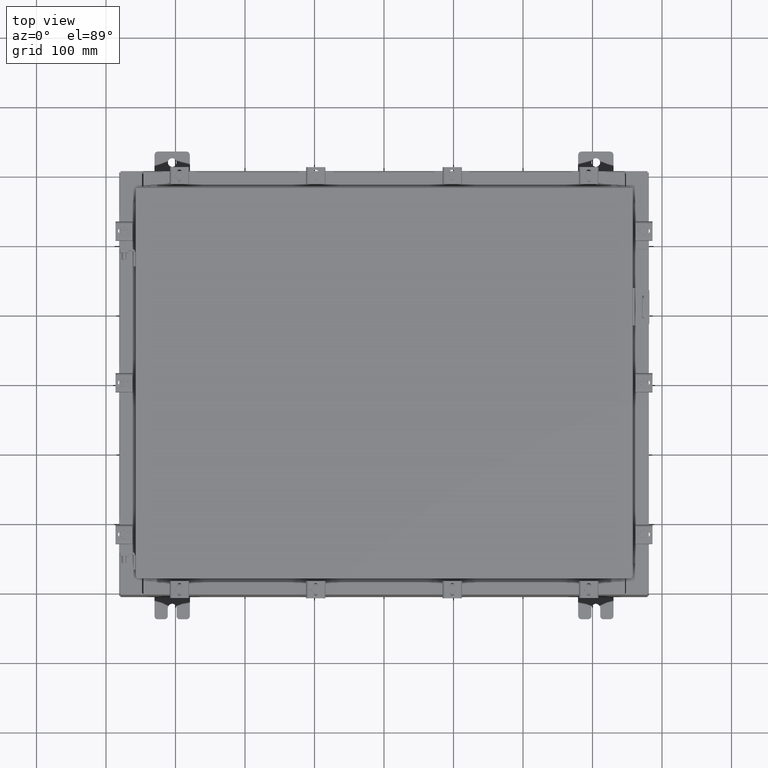
[diagram: clean part render]
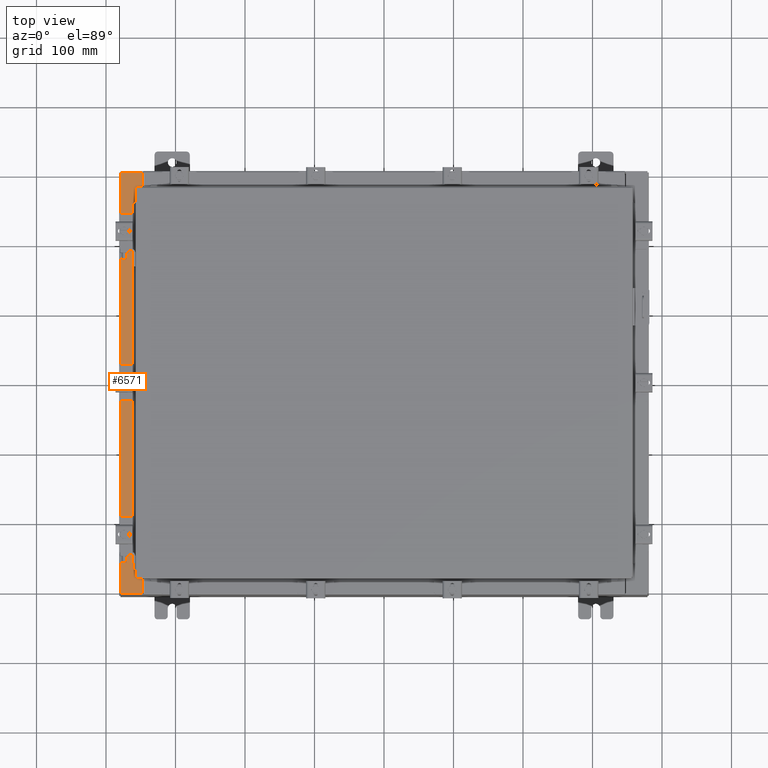
[diagram: same view with one face highlighted and labeled with its STEP entity id]
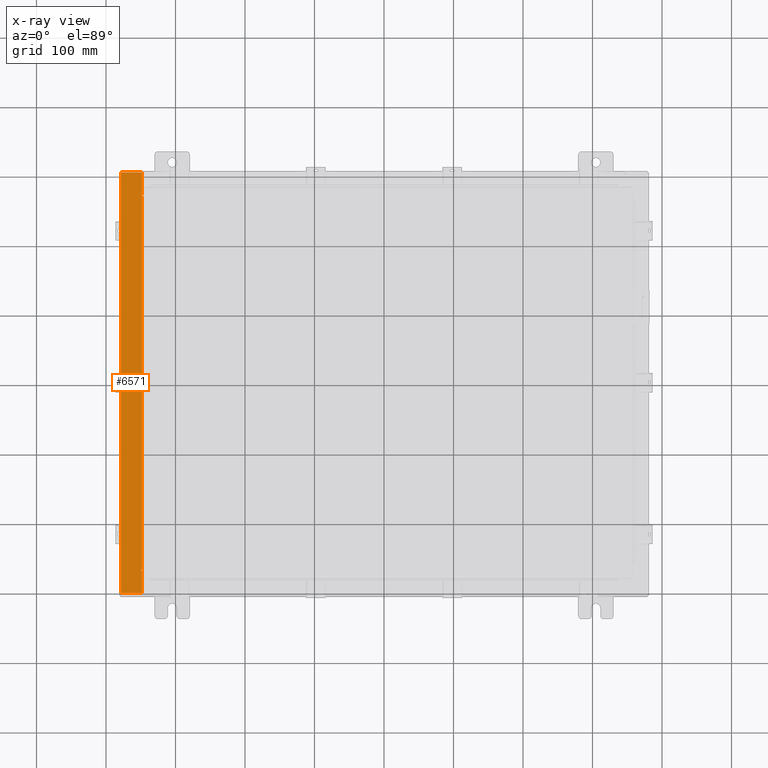
[diagram: x-ray of the same camera — body ghosted, the highlighted face saturated]
A machine part, top view. The second image highlights one B-rep face of the part: STEP entity #6571.
The next image is the same camera in x-ray: the body ghosted, the highlighted face saturated — about 0% of this face is hidden behind the body in this view.
In plain terms, the highlighted planar face has unit normal (0, 0, -1).
Its self-contained STEP definition (entity closure, byte-faithful):
#64 = DIRECTION ( 'NONE',  ( -7.132762385546384700E-015, -0.0000000000000000000, 1.000000000000000000 ) ) ;
#143 = EDGE_CURVE ( 'NONE', #18960, #5384, #9127, .T. ) ;
#363 = FACE_OUTER_BOUND ( 'NONE', #16269, .T. ) ;
#709 = DIRECTION ( 'NONE',  ( -1.000000000000000000, 0.0000000000000000000, 0.0000000000000000000 ) ) ;
#736 = VERTEX_POINT ( 'NONE', #18674 ) ;
#938 = CARTESIAN_POINT ( 'NONE',  ( -13.69970000000003000, -11.92530000000000000, 7.925300000000008900 ) ) ;
#1153 = VERTEX_POINT ( 'NONE', #3968 ) ;
#1361 = VECTOR ( 'NONE', #20012, 39.37007874015748100 ) ;
#1457 = CARTESIAN_POINT ( 'NONE',  ( -13.75005000000002800, 10.59374999999999800, 7.925300000000007100 ) ) ;
#1916 = CARTESIAN_POINT ( 'NONE',  ( -13.75005000000002800, -10.61242499999999800, 7.925300000000008900 ) ) ;
#2036 = CARTESIAN_POINT ( 'NONE',  ( -13.69970000000003000, 0.0000000000000000000, 7.925300000000008900 ) ) ;
#2436 = VECTOR ( 'NONE', #709, 39.37007874015748100 ) ;
#2519 = VERTEX_POINT ( 'NONE', #5413 ) ;
#2815 = DIRECTION ( 'NONE',  ( 1.000000000000000000, -0.0000000000000000000, 7.132762385546384700E-015 ) ) ;
#2964 = LINE ( 'NONE', #13707, #21005 ) ;
#2988 = DIRECTION ( 'NONE',  ( 7.132762385546384700E-015, 0.0000000000000000000, -1.000000000000000000 ) ) ;
#3023 = VERTEX_POINT ( 'NONE', #10030 ) ;
#3141 = DIRECTION ( 'NONE',  ( -0.0000000000000000000, -1.000000000000000000, -0.0000000000000000000 ) ) ;
#3188 = DIRECTION ( 'NONE',  ( -7.132762385546384700E-015, -0.0000000000000000000, 1.000000000000000000 ) ) ;
#3439 = EDGE_CURVE ( 'NONE', #5384, #1153, #7097, .T. ) ;
#3968 = CARTESIAN_POINT ( 'NONE',  ( -13.69970000000003000, -10.63109999999999800, 7.925300000000008900 ) ) ;
#5179 = DIRECTION ( 'NONE',  ( 0.0000000000000000000, 1.000000000000000000, 0.0000000000000000000 ) ) ;
#5233 = EDGE_CURVE ( 'NONE', #9871, #22314, #21724, .T. ) ;
#5272 = LINE ( 'NONE', #19783, #14500 ) ;
#5384 = VERTEX_POINT ( 'NONE', #15280 ) ;
#5413 = CARTESIAN_POINT ( 'NONE',  ( -13.71270000000003000, -10.59374999999999800, 7.925300000000008900 ) ) ;
#5562 = DIRECTION ( 'NONE',  ( 0.0000000000000000000, 1.000000000000000000, 0.0000000000000000000 ) ) ;
#5626 = EDGE_CURVE ( 'NONE', #22314, #1153, #15108, .T. ) ;
#5861 = ORIENTED_EDGE ( 'NONE', *, *, #10880, .T. ) ;
#5875 = VECTOR ( 'NONE', #5562, 39.37007874015748100 ) ;
#6273 = CIRCLE ( 'NONE', #20023, 0.01867499999999949400 ) ;
#6571 = ADVANCED_FACE ( 'NONE', ( #363 ), #8190, .F. ) ;
#7012 = ORIENTED_EDGE ( 'NONE', *, *, #5233, .T. ) ;
#7097 = LINE ( 'NONE', #11072, #21552 ) ;
#7353 = AXIS2_PLACEMENT_3D ( 'NONE', #1916, #3188, #8464 ) ;
#7488 = EDGE_CURVE ( 'NONE', #19414, #736, #12869, .T. ) ;
#7586 = ORIENTED_EDGE ( 'NONE', *, *, #5626, .T. ) ;
#7854 = EDGE_CURVE ( 'NONE', #18881, #2519, #11265, .T. ) ;
#8190 = PLANE ( 'NONE',  #15553 ) ;
#8464 = DIRECTION ( 'NONE',  ( 1.000000000000000000, 0.0000000000000000000, 0.0000000000000000000 ) ) ;
#9127 = CIRCLE ( 'NONE', #7353, 0.01867499999999949400 ) ;
#9358 = ORIENTED_EDGE ( 'NONE', *, *, #10755, .F. ) ;
#9394 = DIRECTION ( 'NONE',  ( -1.000000000000000000, 0.0000000000000000000, -7.132762385546384700E-015 ) ) ;
#9871 = VERTEX_POINT ( 'NONE', #13938 ) ;
#10030 = CARTESIAN_POINT ( 'NONE',  ( -14.91230000000002900, 11.92529999999999800, 7.925300000000000000 ) ) ;
#10169 = EDGE_CURVE ( 'NONE', #2519, #18960, #21031, .T. ) ;
#10212 = CARTESIAN_POINT ( 'NONE',  ( -13.75005000000002800, -10.59374999999999800, 7.925300000000007100 ) ) ;
#10521 = CARTESIAN_POINT ( 'NONE',  ( -13.75005000000002800, 10.61242499999999800, 7.925300000000008900 ) ) ;
#10755 = EDGE_CURVE ( 'NONE', #13333, #14553, #6273, .T. ) ;
#10880 = EDGE_CURVE ( 'NONE', #736, #3023, #18015, .T. ) ;
#11072 = CARTESIAN_POINT ( 'NONE',  ( -13.75005000000002800, -10.63109999999999600, 7.925300000000008900 ) ) ;
#11237 = CARTESIAN_POINT ( 'NONE',  ( -13.69970000000003000, 10.63109999999999600, 7.925300000000008900 ) ) ;
#11265 = LINE ( 'NONE', #15288, #19495 ) ;
#12269 = DIRECTION ( 'NONE',  ( 1.000000000000000000, 0.0000000000000000000, 0.0000000000000000000 ) ) ;
#12805 = DIRECTION ( 'NONE',  ( 1.000000000000000000, 0.0000000000000000000, 0.0000000000000000000 ) ) ;
#12869 = LINE ( 'NONE', #15590, #21642 ) ;
#13333 = VERTEX_POINT ( 'NONE', #17756 ) ;
#13335 = VECTOR ( 'NONE', #9394, 39.37007874015748100 ) ;
#13707 = CARTESIAN_POINT ( 'NONE',  ( -13.75005000000002800, 10.59374999999999800, 7.925300000000008900 ) ) ;
#13938 = CARTESIAN_POINT ( 'NONE',  ( -14.91230000000002900, -11.92530000000000000, 7.925300000000000000 ) ) ;
#14500 = VECTOR ( 'NONE', #21543, 39.37007874015748100 ) ;
#14505 = ORIENTED_EDGE ( 'NONE', *, *, #7488, .T. ) ;
#14553 = VERTEX_POINT ( 'NONE', #1457 ) ;
#14592 = CARTESIAN_POINT ( 'NONE',  ( -13.71270000000003000, -10.59374999999999800, 7.925300000000008900 ) ) ;
#14628 = CARTESIAN_POINT ( 'NONE',  ( -13.69970000000003000, 10.63109999999999600, 7.925300000000008900 ) ) ;
#14965 = CARTESIAN_POINT ( 'NONE',  ( -5.679009539018309800E-014, -11.92530000000000000, 7.925300000000105700 ) ) ;
#15108 = LINE ( 'NONE', #2036, #5875 ) ;
#15144 = DIRECTION ( 'NONE',  ( -1.000000000000000000, 0.0000000000000000000, -7.132762385546384700E-015 ) ) ;
#15244 = LINE ( 'NONE', #14628, #1361 ) ;
#15280 = CARTESIAN_POINT ( 'NONE',  ( -13.75005000000002800, -10.63109999999999600, 7.925300000000007100 ) ) ;
#15288 = CARTESIAN_POINT ( 'NONE',  ( -13.71270000000003000, 10.59374999999999800, 7.925300000000008900 ) ) ;
#15516 = DIRECTION ( 'NONE',  ( 1.000000000000000000, 0.0000000000000000000, 0.0000000000000000000 ) ) ;
#15553 = AXIS2_PLACEMENT_3D ( 'NONE', #18627, #2988, #15144 ) ;
#15590 = CARTESIAN_POINT ( 'NONE',  ( -13.69970000000003000, 0.0000000000000000000, 7.925300000000008900 ) ) ;
#15988 = EDGE_CURVE ( 'NONE', #9871, #3023, #5272, .T. ) ;
#16269 = EDGE_LOOP ( 'NONE', ( #21614, #14505, #5861, #17709, #7012, #7586, #19447, #22646, #19374, #18590, #22053, #9358 ) ) ;
#16917 = CARTESIAN_POINT ( 'NONE',  ( -13.71270000000003000, 10.59374999999999800, 7.925300000000008900 ) ) ;
#17635 = VECTOR ( 'NONE', #2815, 39.37007874015748100 ) ;
#17709 = ORIENTED_EDGE ( 'NONE', *, *, #15988, .F. ) ;
#17756 = CARTESIAN_POINT ( 'NONE',  ( -13.75005000000002800, 10.63109999999999600, 7.925300000000007100 ) ) ;
#18015 = LINE ( 'NONE', #18092, #13335 ) ;
#18016 = EDGE_CURVE ( 'NONE', #19414, #13333, #15244, .T. ) ;
#18092 = CARTESIAN_POINT ( 'NONE',  ( -5.679009539018309800E-014, 11.92529999999999800, 7.925300000000105700 ) ) ;
#18590 = ORIENTED_EDGE ( 'NONE', *, *, #7854, .F. ) ;
#18627 = CARTESIAN_POINT ( 'NONE',  ( -5.679009539018309800E-014, 0.0000000000000000000, 7.925300000000105700 ) ) ;
#18674 = CARTESIAN_POINT ( 'NONE',  ( -13.69970000000003000, 11.92529999999999800, 7.925300000000008900 ) ) ;
#18881 = VERTEX_POINT ( 'NONE', #16917 ) ;
#18960 = VERTEX_POINT ( 'NONE', #10212 ) ;
#19030 = EDGE_CURVE ( 'NONE', #14553, #18881, #2964, .T. ) ;
#19374 = ORIENTED_EDGE ( 'NONE', *, *, #10169, .F. ) ;
#19414 = VERTEX_POINT ( 'NONE', #11237 ) ;
#19447 = ORIENTED_EDGE ( 'NONE', *, *, #3439, .F. ) ;
#19495 = VECTOR ( 'NONE', #3141, 39.37007874015748100 ) ;
#19783 = CARTESIAN_POINT ( 'NONE',  ( -14.91230000000002900, 11.92529999999999800, 7.925300000000000000 ) ) ;
#20012 = DIRECTION ( 'NONE',  ( -1.000000000000000000, 0.0000000000000000000, 0.0000000000000000000 ) ) ;
#20023 = AXIS2_PLACEMENT_3D ( 'NONE', #10521, #64, #12269 ) ;
#21005 = VECTOR ( 'NONE', #15516, 39.37007874015748100 ) ;
#21031 = LINE ( 'NONE', #14592, #2436 ) ;
#21543 = DIRECTION ( 'NONE',  ( -0.0000000000000000000, 1.000000000000000000, -0.0000000000000000000 ) ) ;
#21552 = VECTOR ( 'NONE', #12805, 39.37007874015748100 ) ;
#21614 = ORIENTED_EDGE ( 'NONE', *, *, #18016, .F. ) ;
#21642 = VECTOR ( 'NONE', #5179, 39.37007874015748100 ) ;
#21724 = LINE ( 'NONE', #14965, #17635 ) ;
#22053 = ORIENTED_EDGE ( 'NONE', *, *, #19030, .F. ) ;
#22314 = VERTEX_POINT ( 'NONE', #938 ) ;
#22646 = ORIENTED_EDGE ( 'NONE', *, *, #143, .F. ) ;